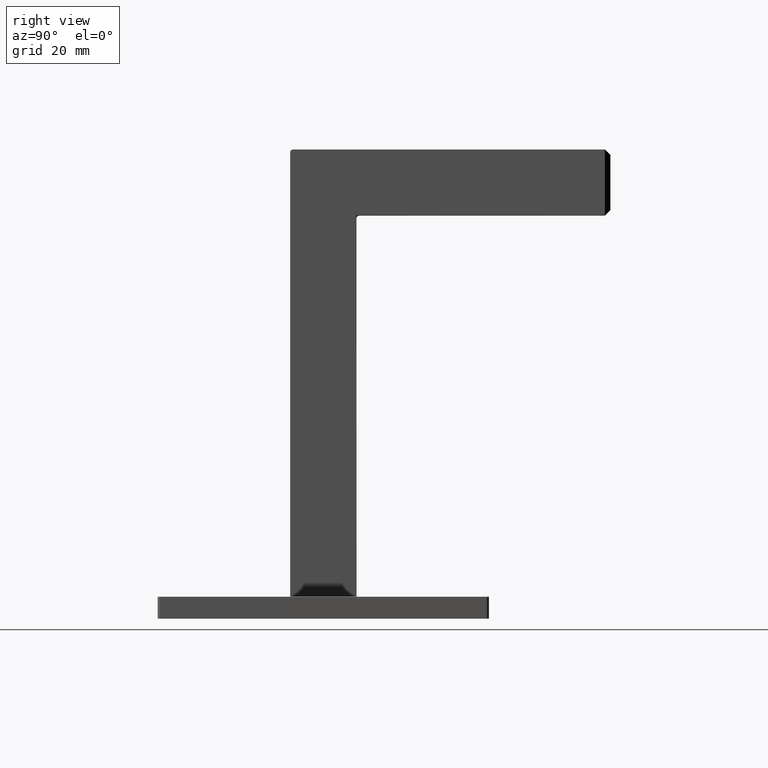
[diagram: clean part render]
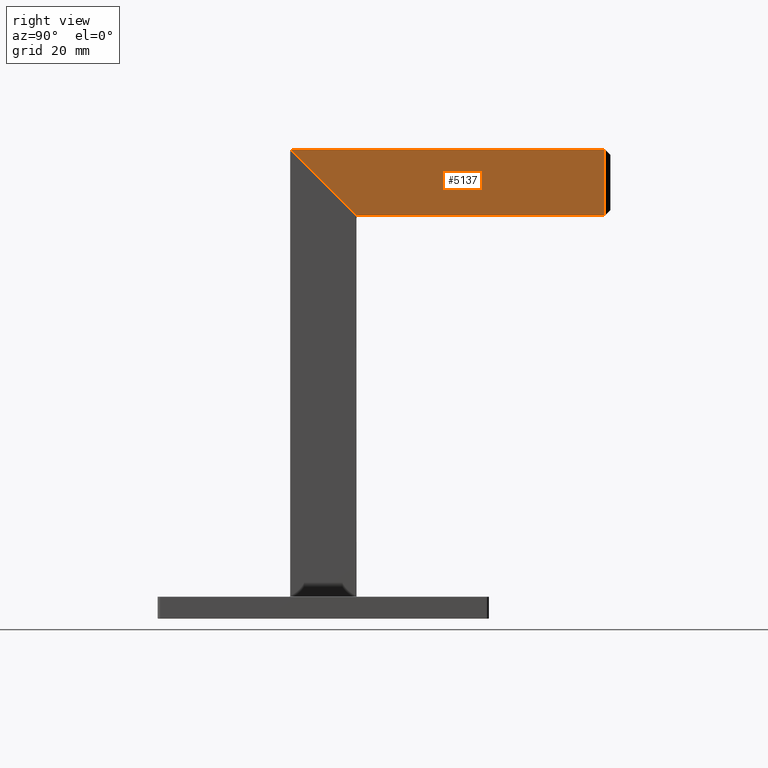
[diagram: same view with one face highlighted and labeled with its STEP entity id]
A machine part, right view. The second image highlights one B-rep face of the part: STEP entity #5137.
In plain terms, the highlighted planar face has unit normal (-1, 0, -0).
Its self-contained STEP definition (entity closure, byte-faithful):
#102 = EDGE_CURVE ( 'NONE', #6618, #7226, #6633, .T. ) ;
#316 = CARTESIAN_POINT ( 'NONE',  ( 6.000000000000000000, 50.99999999999998579, 73.00000000000000000 ) ) ;
#1077 = LINE ( 'NONE', #7925, #2407 ) ;
#1115 = VERTEX_POINT ( 'NONE', #3323 ) ;
#1464 = DIRECTION ( 'NONE',  ( 1.000000000000000000, -0.000000000000000000, 1.445602896647339163E-16 ) ) ;
#1816 = ORIENTED_EDGE ( 'NONE', *, *, #9371, .T. ) ;
#1941 = ORIENTED_EDGE ( 'NONE', *, *, #102, .T. ) ;
#2204 = CARTESIAN_POINT ( 'NONE',  ( 6.000000000000000000, -6.700000000000019718, 73.00000000000001421 ) ) ;
#2337 = AXIS2_PLACEMENT_3D ( 'NONE', #9913, #1464, #3005 ) ;
#2407 = VECTOR ( 'NONE', #5570, 1000.000000000000000 ) ;
#2434 = CARTESIAN_POINT ( 'NONE',  ( 5.999999999999998224, 50.99999999999998579, 84.90000000000000568 ) ) ;
#2480 = LINE ( 'NONE', #316, #6382 ) ;
#3005 = DIRECTION ( 'NONE',  ( 0.000000000000000000, 0.000000000000000000, 1.000000000000000000 ) ) ;
#3323 = CARTESIAN_POINT ( 'NONE',  ( 5.999999999999998224, -5.500000000000011546, 84.90000000000000568 ) ) ;
#3382 = FACE_OUTER_BOUND ( 'NONE', #9756, .T. ) ;
#3648 = ORIENTED_EDGE ( 'NONE', *, *, #6631, .T. ) ;
#3797 = PLANE ( 'NONE',  #9675 ) ;
#4126 = CARTESIAN_POINT ( 'NONE',  ( 6.000000000000000000, 50.99999999999998579, 73.10000000000000853 ) ) ;
#4164 = DIRECTION ( 'NONE',  ( 1.022195611122249302E-16, 0.7071067811865475727, -0.7071067811865474617 ) ) ;
#4828 = EDGE_CURVE ( 'NONE', #7348, #6618, #7367, .T. ) ;
#4954 = CARTESIAN_POINT ( 'NONE',  ( 6.000000000000005329, 42.49999999999999289, 36.50000000000000000 ) ) ;
#5137 = ADVANCED_FACE ( 'NONE', ( #3382 ), #3797, .F. ) ;
#5294 = DIRECTION ( 'NONE',  ( -1.445602896647339163E-16, 0.000000000000000000, 1.000000000000000000 ) ) ;
#5296 = ORIENTED_EDGE ( 'NONE', *, *, #4828, .T. ) ;
#5550 = CARTESIAN_POINT ( 'NONE',  ( 6.000000000000000000, -6.700000000000019718, 73.10000000000000853 ) ) ;
#5570 = DIRECTION ( 'NONE',  ( -0.000000000000000000, -1.000000000000000000, -0.000000000000000000 ) ) ;
#5787 = VECTOR ( 'NONE', #4164, 1000.000000000000000 ) ;
#6382 = VECTOR ( 'NONE', #8814, 1000.000000000000000 ) ;
#6618 = VERTEX_POINT ( 'NONE', #9256 ) ;
#6631 = EDGE_CURVE ( 'NONE', #7047, #1115, #1077, .T. ) ;
#6633 = LINE ( 'NONE', #5550, #7699 ) ;
#7047 = VERTEX_POINT ( 'NONE', #2434 ) ;
#7226 = VERTEX_POINT ( 'NONE', #4126 ) ;
#7348 = VERTEX_POINT ( 'NONE', #9787 ) ;
#7367 = LINE ( 'NONE', #4954, #5787 ) ;
#7599 = DIRECTION ( 'NONE',  ( -1.000000000000000000, 0.000000000000000000, -1.445602896647339163E-16 ) ) ;
#7699 = VECTOR ( 'NONE', #8597, 1000.000000000000000 ) ;
#7717 = CIRCLE ( 'NONE', #2337, 0.3999999999999975797 ) ;
#7925 = CARTESIAN_POINT ( 'NONE',  ( 5.999999999999998224, -6.700000000000019718, 84.90000000000000568 ) ) ;
#8149 = ORIENTED_EDGE ( 'NONE', *, *, #8874, .T. ) ;
#8597 = DIRECTION ( 'NONE',  ( 0.000000000000000000, 1.000000000000000000, 0.000000000000000000 ) ) ;
#8814 = DIRECTION ( 'NONE',  ( -1.445602896647339163E-16, 1.608122649676636601E-16, 1.000000000000000000 ) ) ;
#8874 = EDGE_CURVE ( 'NONE', #7226, #7047, #2480, .T. ) ;
#9256 = CARTESIAN_POINT ( 'NONE',  ( 6.000000000000000000, 5.899999999999974598, 73.10000000000000853 ) ) ;
#9371 = EDGE_CURVE ( 'NONE', #1115, #7348, #7717, .T. ) ;
#9675 = AXIS2_PLACEMENT_3D ( 'NONE', #2204, #7599, #5294 ) ;
#9756 = EDGE_LOOP ( 'NONE', ( #3648, #1816, #5296, #1941, #8149 ) ) ;
#9787 = CARTESIAN_POINT ( 'NONE',  ( 5.999999999999998224, -5.782842712474630886, 84.78284271247461845 ) ) ;
#9913 = CARTESIAN_POINT ( 'NONE',  ( 5.999999999999998224, -5.500000000000011546, 84.50000000000000000 ) ) ;